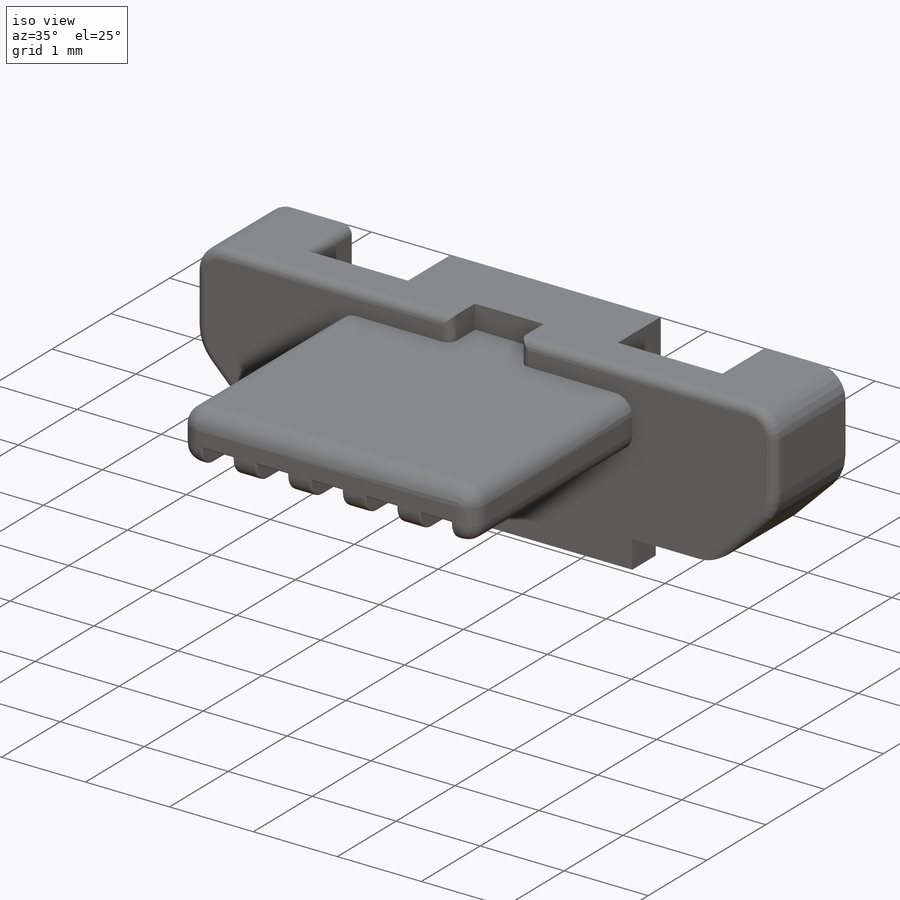
[diagram: iso view]
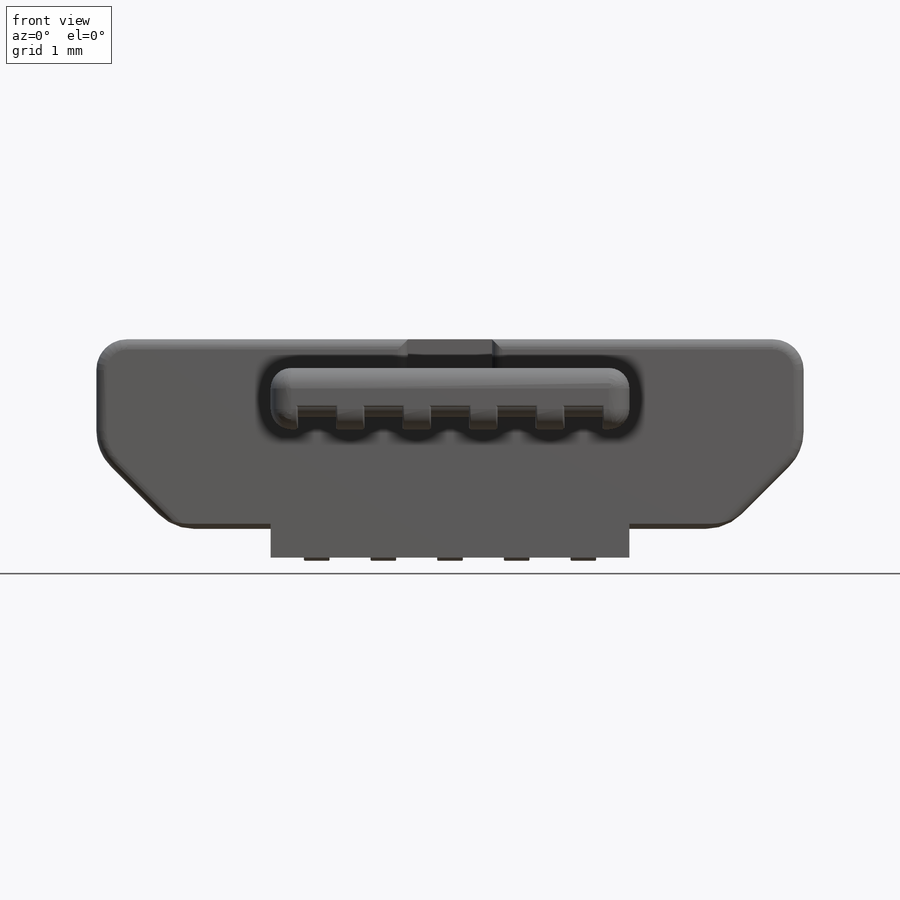
[diagram: front view]
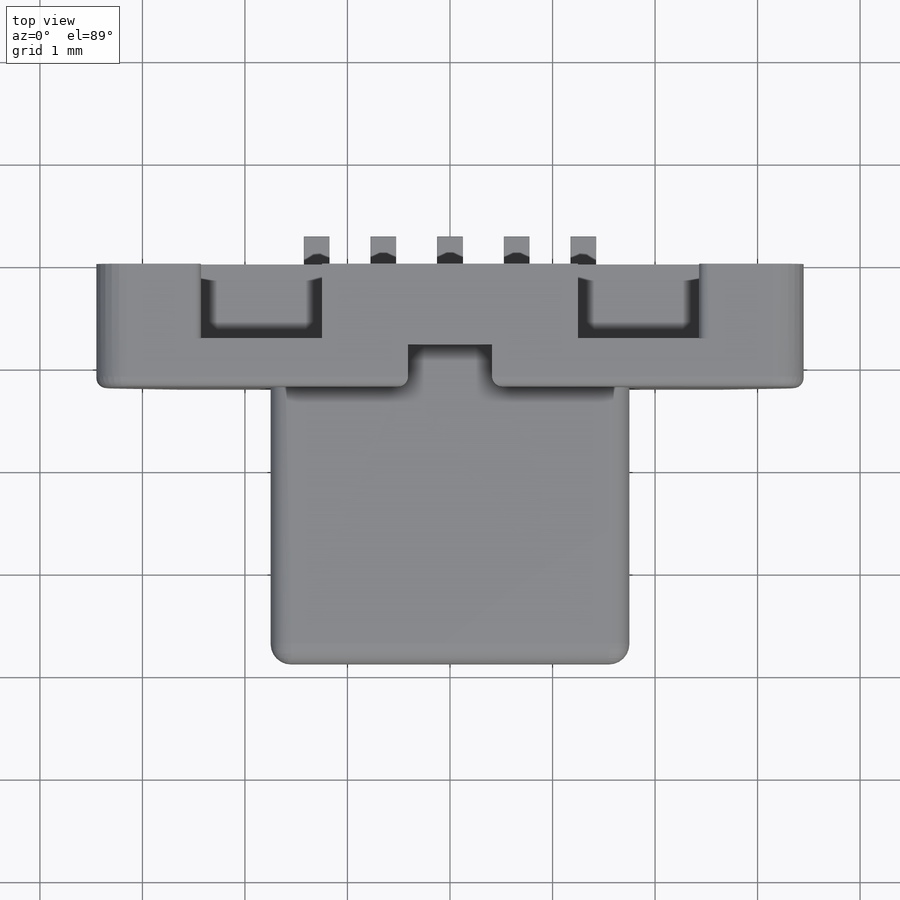
[diagram: top view]
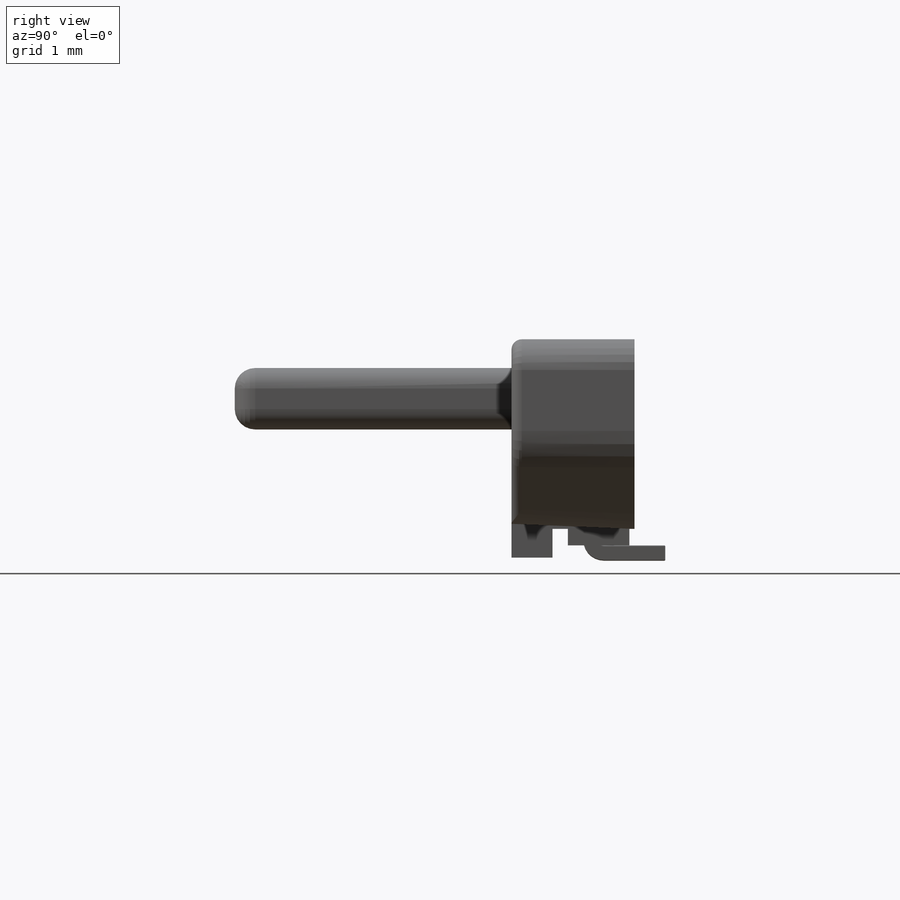
[diagram: right view]
SOLIDWORKS PART (.sldprt)
format: sldprt  version: not decoded by parser v0  size: 1,331,712 bytes
history: native  units: mm
features: fillet x22, sketch x18, cut_extrude x8, extrude x6, sweep x2, material x1, plane x1 (+13 scaffold rows collapsed)
feature tree (71):
  scaffold x13  (default folders/planes/origin — collapsed)
  material  "Material <not specified>"
  sketch  "Sketch1"  dims[D1=6.9mm D2=1.85mm]
  extrude  "Boss-Extrude1"  Depth=1.2mm
  fillet  "Fillet1"  Radius=0.3mm
  sketch  "Sketch4"  dims[D1=0.73mm D2=2.5mm D3=1.18mm D4=1.18mm D5=1.2mm]
  cut_extrude  "Cut-Extrude2"  Depth=0.5mm
  sketch  "Sketch5"  dims[D1=0.4mm D2=3.5mm]
  extrude  "Boss-Extrude3"  Depth=0.28mm
  sketch  "Sketch7"  dims[D1=0.05mm]
  cut_extrude  "Cut-Extrude3"  Depth=2.28mm
  sketch  "Sketch8"  dims[D1=0.0mm]
  cut_extrude  "Cut-Extrude4"  Depth=2.28mm
  sketch  "Sketch2"  dims[c1.D1=0.82mm c1.D2=0.21mm c1.D3=~0.422625mm c2.D2=0.28mm]
  cut_extrude  "Cut-Extrude1"  Depth=0.41mm
  sketch  "Sketch3"  dims[c1.D1=0.28mm c1.D2=3.5mm c1.D3=0.6mm c1.D4=~1.427725mm c2.D1=0.28mm]
  extrude  "Boss-Extrude2"  Depth=2.7mm
  fillet  "Fillet5"  Radius=0.2mm
  fillet  "Fillet7"  Radius=0.5mm
  fillet  "Fillet8"  Radius=0.1mm
  fillet  "Fillet9"  Radius=0.1mm
  sketch  "Sketch9"  dims[D1=0.05mm D2=0.6mm]
  extrude  "Boss-Extrude4"  Depth=0.16mm
  sketch  "Sketch10"  dims[D1=0.37mm D2=2.6mm D3=0.28mm D4=0.28mm D5=0.28mm D6=0.28mm D7=0.22mm]
  cut_extrude  "Cut-Extrude5"  [1 undecoded]
  plane  "Plane1"  Offset=0.2mm
  sketch  "Sketch11"  dims[D1=0.15mm D2=0.48mm D3=5.0]
  sketch  "Sketch12"  dims[D1=0.2mm D2=0.35mm]
  sketch  "Sketch13"  dims[c1.D1=0.25mm c1.D2=0.06mm c1.D3=0.06mm c2.D2=0.06mm c3.D2=5.0]
  sweep  "Cut-Sweep2"
  cut_extrude  "Cut-Extrude6"  Depth=2.8mm
  sketch  "Sketch14"  dims[D1=0.0mm D2=0.0mm D3=0.0mm D4=0.0mm D5=0.0mm]
  sketch  "Sketch15"  dims[c1.D1=0.1mm c1.D2=0.05mm c2.D1=0.3mm]
  sweep  "Sweep3"
  sketch  "Sketch16"  dims[D1=5.0]
  cut_extrude  "Cut-Extrude7"  [1 undecoded]
  sketch  "Sketch17"  dims[D1=0.0mm D2=0.0mm D3=0.0mm D4=0.0mm D5=0.0mm]
  extrude  "Boss-Extrude5"  Depth=2.8mm
  sketch  "Sketch18"  dims[D1=0.15mm D2=5.0]
  cut_extrude  "Cut-Extrude8"  Depth=0.15mm
  fillet  "Fillet10"  Radius=0.1mm
  sketch  "Sketch19"  dims[D1=0.15mm]
  extrude  "Boss-Extrude6"  Depth=0.15mm
  fillet  "Fillet11"  Radius=0.15mm
  fillet  "Fillet12"  Radius=0.15mm
  fillet  "Fillet13"  Radius=0.15mm
  fillet  "Fillet14"  Radius=0.15mm
  fillet  "Fillet15"  Radius=0.15mm
  fillet  "Fillet16"  Radius=0.01mm
  fillet  "Fillet17"  Radius=0.01mm
  fillet  "Fillet18"  Radius=0.01mm
  fillet  "Fillet19"  Radius=0.01mm
  fillet  "Fillet20"  Radius=0.01mm
  fillet  "Fillet21"  Radius=0.01mm
  fillet  "Fillet22"  Radius=0.01mm
  fillet  "Fillet23"  Radius=0.01mm
  fillet  "Fillet24"  Radius=0.01mm
  fillet  "Fillet25"  Radius=0.01mm
  fillet  "Fillet26"  Radius=0.02mm
decode coverage: 52 of 56 modeling features carry decoded parameters
note: ~ marks probable driven/reference dimensions
note: 2 parameter values undecoded
note: suppression state not decoded; provenance and decode notes live in map.json
